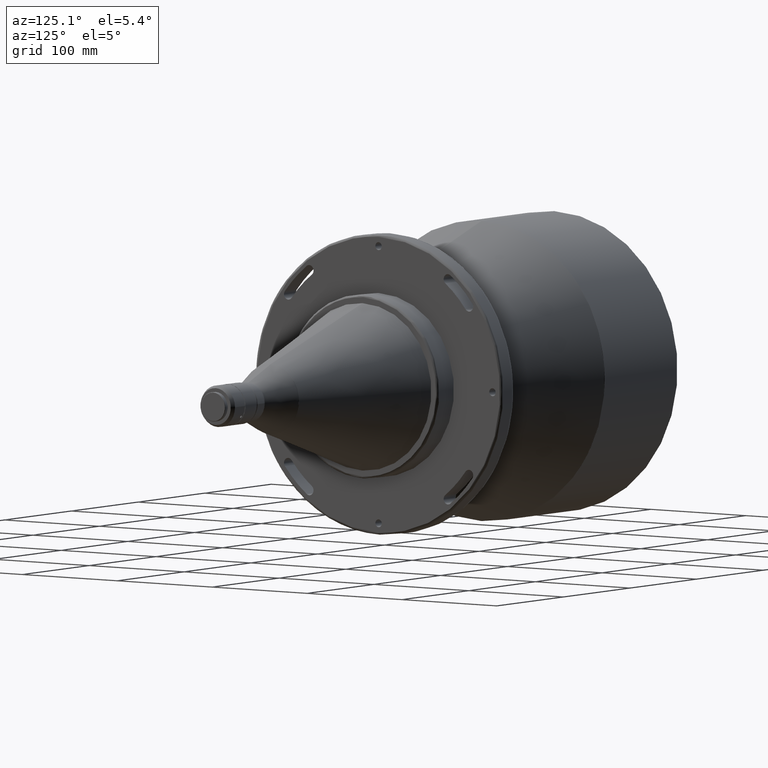
[diagram: clean part render]
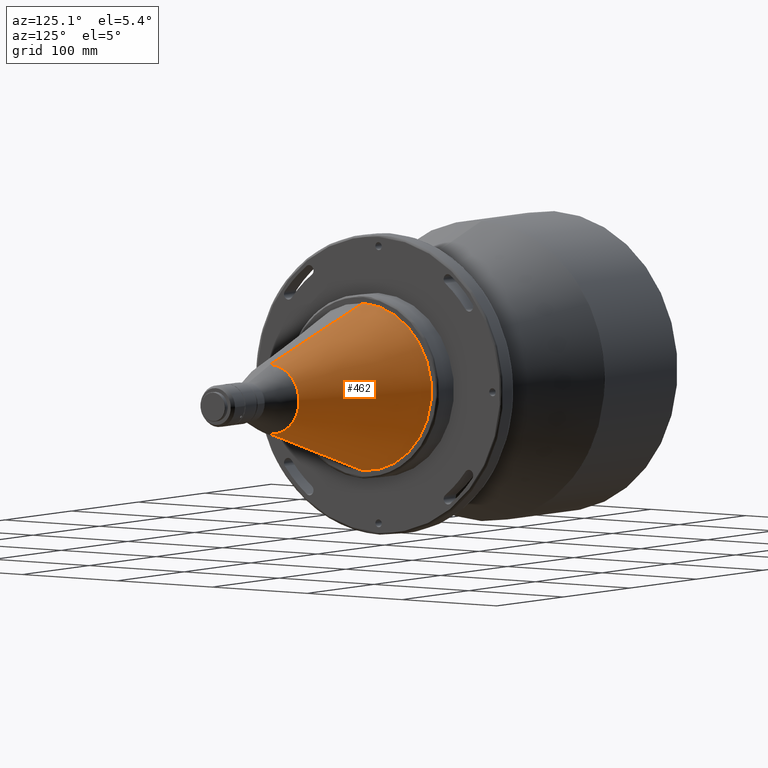
[diagram: same view with one face highlighted and labeled with its STEP entity id]
A machine part, auxiliary view. The second image highlights one B-rep face of the part: STEP entity #462.
In plain terms, the highlighted conical surface has half-angle 17 deg.
Its self-contained STEP definition (entity closure, byte-faithful):
#62 = LINE ( 'NONE', #2400, #1016 ) ;
#202 = EDGE_CURVE ( 'NONE', #880, #2692, #1564, .T. ) ;
#244 = CARTESIAN_POINT ( 'NONE',  ( 170.4647483420433800, -9.290462691037500800E-009, -30.19765119914148600 ) ) ;
#410 = DIRECTION ( 'NONE',  ( -0.9563047559619837200, 0.0000000000000000000, 0.2923717047261769600 ) ) ;
#447 = CONICAL_SURFACE ( 'NONE', #886, 30.19765119900000600, 0.2967059728426334500 ) ;
#462 = ADVANCED_FACE ( 'NONE', ( #790 ), #447, .T. ) ;
#468 = DIRECTION ( 'NONE',  ( -1.838260560910647100E-015, 8.881784197001252300E-016, 1.000000000000000000 ) ) ;
#587 = DIRECTION ( 'NONE',  ( 1.000000000000000000, -0.0000000000000000000, -0.0000000000000000000 ) ) ;
#705 = CARTESIAN_POINT ( 'NONE',  ( 170.4647483420000400, 3.698145688262359100E-015, -30.19765119900000600 ) ) ;
#790 = FACE_OUTER_BOUND ( 'NONE', #1966, .T. ) ;
#832 = DIRECTION ( 'NONE',  ( 0.0000000000000000000, 0.0000000000000000000, 1.000000000000000000 ) ) ;
#880 = VERTEX_POINT ( 'NONE', #2965 ) ;
#886 = AXIS2_PLACEMENT_3D ( 'NONE', #1153, #2373, #1122 ) ;
#1016 = VECTOR ( 'NONE', #410, 1000.000000000000000 ) ;
#1122 = DIRECTION ( 'NONE',  ( 0.0000000000000000000, 0.0000000000000000000, 1.000000000000000000 ) ) ;
#1153 = CARTESIAN_POINT ( 'NONE',  ( 170.4647483420000400, 0.0000000000000000000, 0.0000000000000000000 ) ) ;
#1165 = CARTESIAN_POINT ( 'NONE',  ( 170.4647483420000900, 0.0000000000000000000, 0.0000000000000000000 ) ) ;
#1218 = AXIS2_PLACEMENT_3D ( 'NONE', #3000, #587, #832 ) ;
#1305 = EDGE_CURVE ( 'NONE', #1426, #2727, #2291, .T. ) ;
#1308 = ORIENTED_EDGE ( 'NONE', *, *, #1305, .F. ) ;
#1385 = ORIENTED_EDGE ( 'NONE', *, *, #2195, .T. ) ;
#1426 = VERTEX_POINT ( 'NONE', #244 ) ;
#1564 = CIRCLE ( 'NONE', #1218, 72.50000000000000000 ) ;
#1919 = VECTOR ( 'NONE', #2723, 1000.000000000000000 ) ;
#1938 = ORIENTED_EDGE ( 'NONE', *, *, #3229, .F. ) ;
#1966 = EDGE_LOOP ( 'NONE', ( #1308, #1385, #3189, #1938 ) ) ;
#2130 = CARTESIAN_POINT ( 'NONE',  ( 32.10000000000001600, 0.0000000000000000000, 72.50000000000000000 ) ) ;
#2195 = EDGE_CURVE ( 'NONE', #1426, #880, #2984, .T. ) ;
#2200 = CARTESIAN_POINT ( 'NONE',  ( 170.4647483420433800, -1.355778335591746000E-009, 30.19765119914148600 ) ) ;
#2291 = CIRCLE ( 'NONE', #2929, 30.19765119900000600 ) ;
#2373 = DIRECTION ( 'NONE',  ( -1.000000000000000000, 0.0000000000000000000, 0.0000000000000000000 ) ) ;
#2400 = CARTESIAN_POINT ( 'NONE',  ( 170.4647483420000400, 0.0000000000000000000, 30.19765119900000600 ) ) ;
#2692 = VERTEX_POINT ( 'NONE', #2130 ) ;
#2723 = DIRECTION ( 'NONE',  ( -0.9563047559619837200, 3.580520723541677000E-017, -0.2923717047261769600 ) ) ;
#2727 = VERTEX_POINT ( 'NONE', #2200 ) ;
#2929 = AXIS2_PLACEMENT_3D ( 'NONE', #1165, #2953, #468 ) ;
#2953 = DIRECTION ( 'NONE',  ( 1.000000000000000000, -0.0000000000000000000, -0.0000000000000000000 ) ) ;
#2965 = CARTESIAN_POINT ( 'NONE',  ( 32.10000000000001600, 8.878689293818309300E-015, -72.50000000000000000 ) ) ;
#2984 = LINE ( 'NONE', #705, #1919 ) ;
#3000 = CARTESIAN_POINT ( 'NONE',  ( 32.10000000000001600, 0.0000000000000000000, 0.0000000000000000000 ) ) ;
#3189 = ORIENTED_EDGE ( 'NONE', *, *, #202, .T. ) ;
#3229 = EDGE_CURVE ( 'NONE', #2727, #2692, #62, .T. ) ;